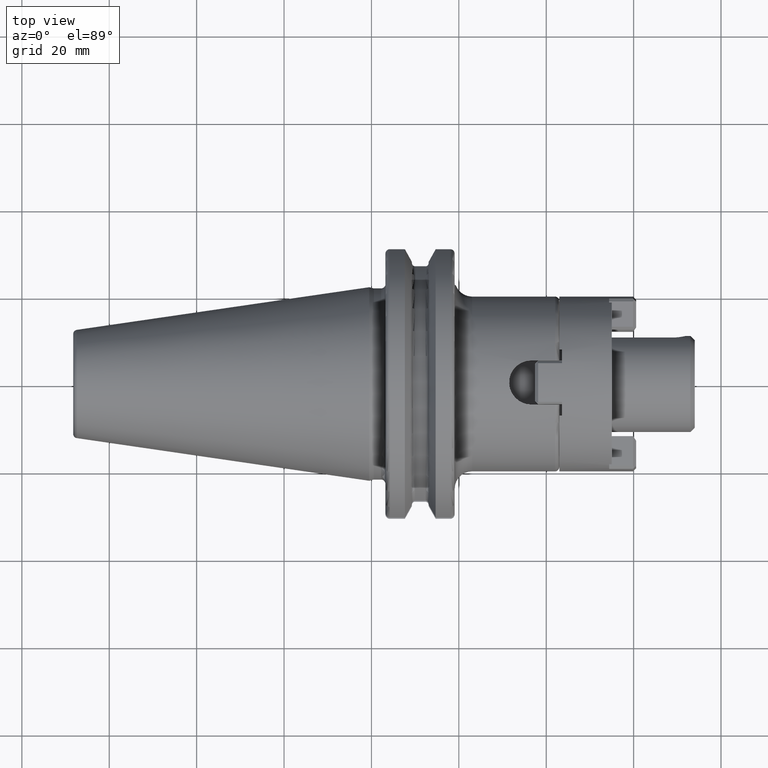
[diagram: clean part render]
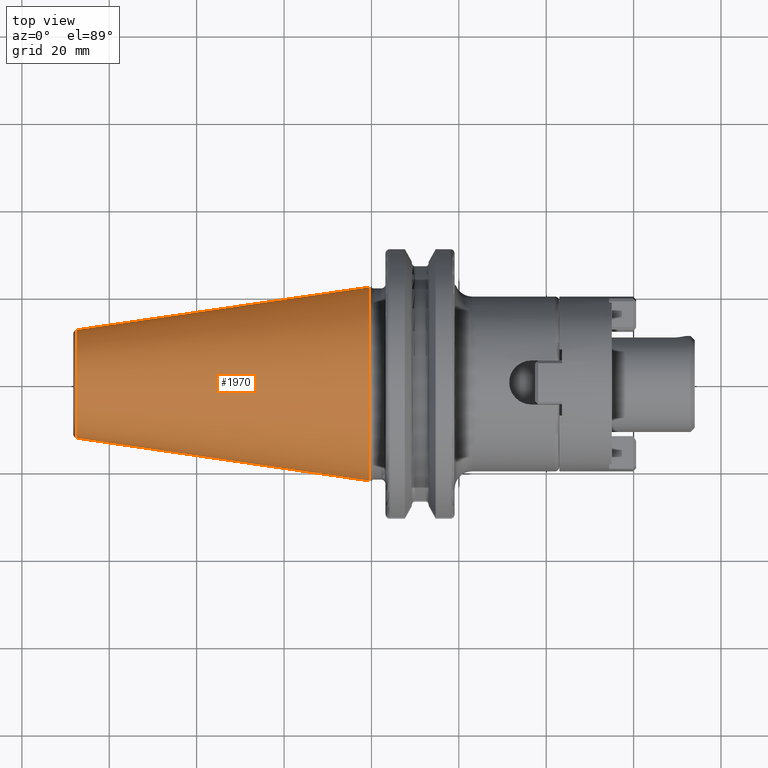
[diagram: same view with one face highlighted and labeled with its STEP entity id]
A machine part, top view. The second image highlights one B-rep face of the part: STEP entity #1970.
In plain terms, the highlighted conical surface has half-angle 8.298 deg.
Its self-contained STEP definition (entity closure, byte-faithful):
#37=CARTESIAN_POINT('',(-6.743710273571E1,0.E0,0.E0));
#38=DIRECTION('',(1.E0,0.E0,0.E0));
#39=DIRECTION('',(0.E0,1.E0,0.E0));
#40=AXIS2_PLACEMENT_3D('',#37,#38,#39);
#42=CARTESIAN_POINT('',(-4.896823332305E-1,0.E0,0.E0));
#43=DIRECTION('',(1.E0,0.E0,0.E0));
#44=DIRECTION('',(0.E0,1.E0,0.E0));
#45=AXIS2_PLACEMENT_3D('',#42,#43,#44);
#47=DIRECTION('',(-9.895312636440E-1,-1.443186691705E-1,0.E0));
#48=VECTOR('',#47,6.765568998391E1);
#49=CARTESIAN_POINT('',(-4.896823332305E-1,2.215358204157E1,0.E0));
#50=LINE('',#49,#48);
#51=DIRECTION('',(-9.895312636440E-1,1.443186691705E-1,0.E0));
#52=VECTOR('',#51,6.765568998391E1);
#53=CARTESIAN_POINT('',(-4.896823332305E-1,-2.215358204157E1,0.E0));
#54=LINE('',#53,#52);
#1590=CARTESIAN_POINT('',(-6.743710273571E1,1.238960290128E1,0.E0));
#1592=VERTEX_POINT('',#1590);
#1594=CARTESIAN_POINT('',(-6.743710273571E1,-1.238960290128E1,0.E0));
#1596=VERTEX_POINT('',#1594);
#1658=CARTESIAN_POINT('',(-4.896823332305E-1,2.215358204157E1,0.E0));
#1659=VERTEX_POINT('',#1658);
#1660=CARTESIAN_POINT('',(-4.896823332305E-1,-2.215358204157E1,0.E0));
#1661=VERTEX_POINT('',#1660);
#1956=CARTESIAN_POINT('',(-3.396339253447E1,0.E0,0.E0));
#1957=DIRECTION('',(1.E0,0.E0,0.E0));
#1958=DIRECTION('',(0.E0,-1.E0,0.E0));
#1959=AXIS2_PLACEMENT_3D('',#1956,#1957,#1958);
#1960=CONICAL_SURFACE('',#1959,1.727159247143E1,8.297826828206E0);
#1962=ORIENTED_EDGE('',*,*,#1961,.F.);
#1964=ORIENTED_EDGE('',*,*,#1963,.T.);
#1966=ORIENTED_EDGE('',*,*,#1965,.T.);
#1967=ORIENTED_EDGE('',*,*,#1949,.F.);
#1968=EDGE_LOOP('',(#1962,#1964,#1966,#1967));
#1969=FACE_OUTER_BOUND('',#1968,.F.);
#1970=ADVANCED_FACE('',(#1969),#1960,.T.);
#41=CIRCLE('',#40,1.238960290128E1);
#46=CIRCLE('',#45,2.215358204157E1);
#1949=EDGE_CURVE('',#1592,#1596,#41,.T.);
#1961=EDGE_CURVE('',#1659,#1592,#50,.T.);
#1963=EDGE_CURVE('',#1659,#1661,#46,.T.);
#1965=EDGE_CURVE('',#1661,#1596,#54,.T.);